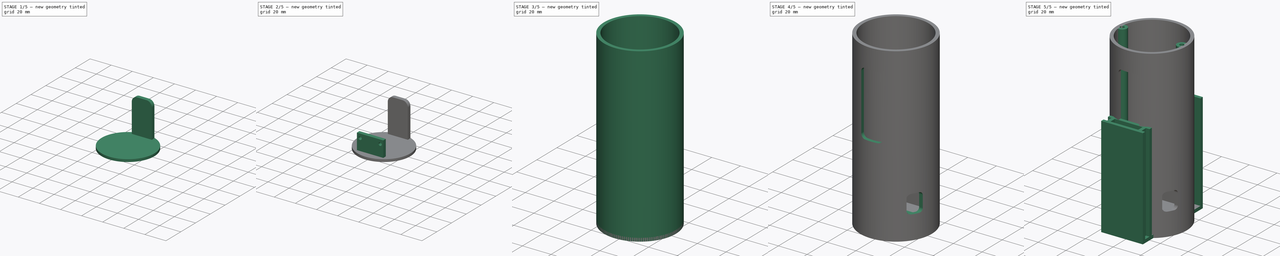
[diagram: build sequence overview — one tinted view per stage of 5, left to right]
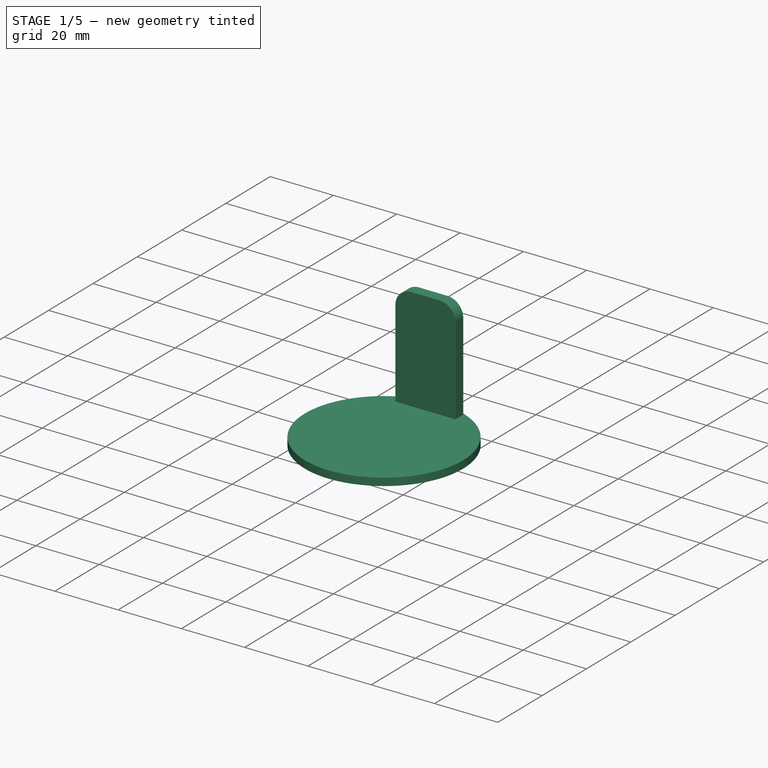
[diagram: stage 1 of 5 — iso view after this stage's code; geometry added in this stage tinted green]
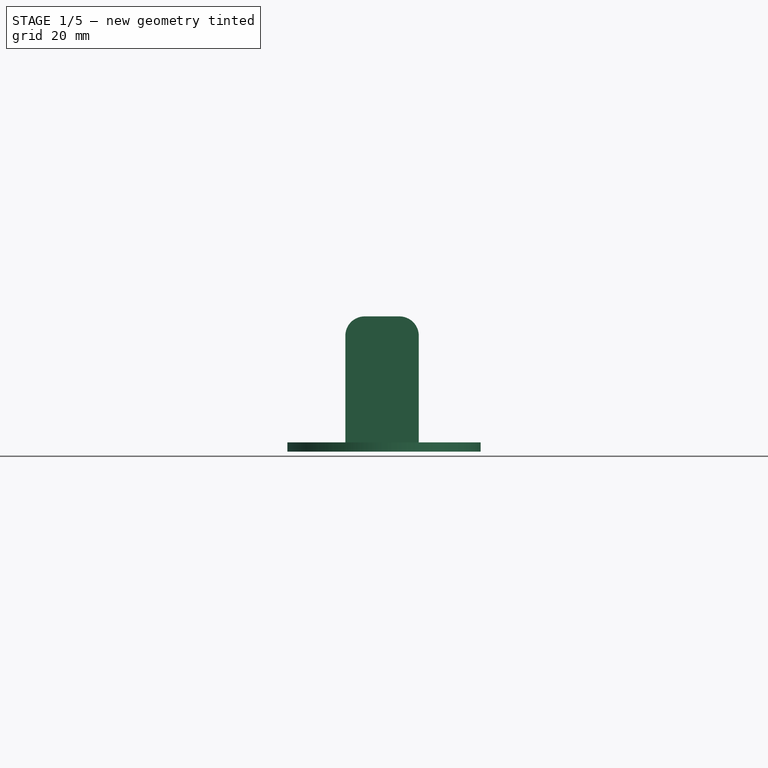
[diagram: stage 1 of 5 — front view after this stage's code; geometry added in this stage tinted green]
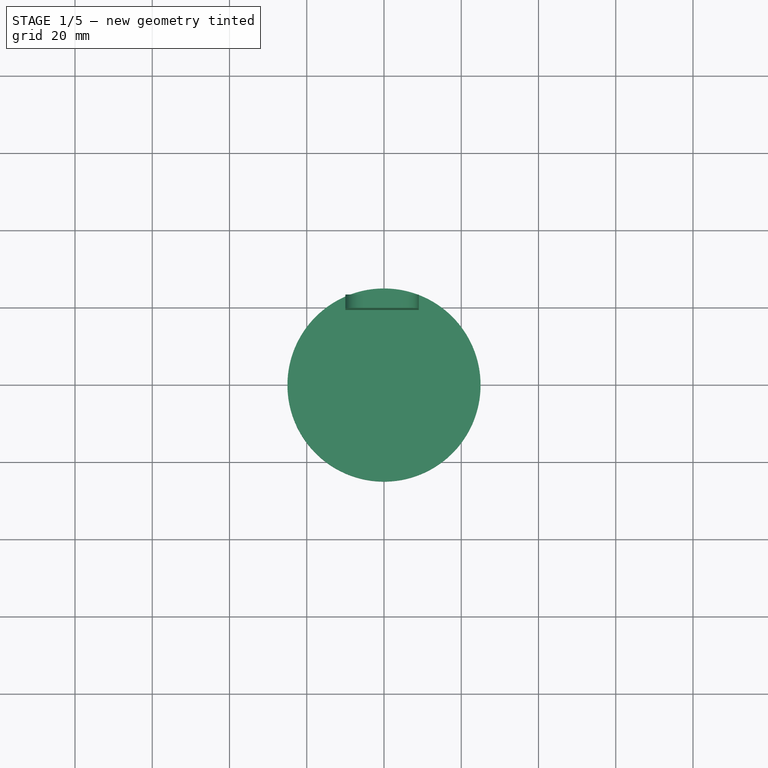
[diagram: stage 1 of 5 — top view after this stage's code; geometry added in this stage tinted green]
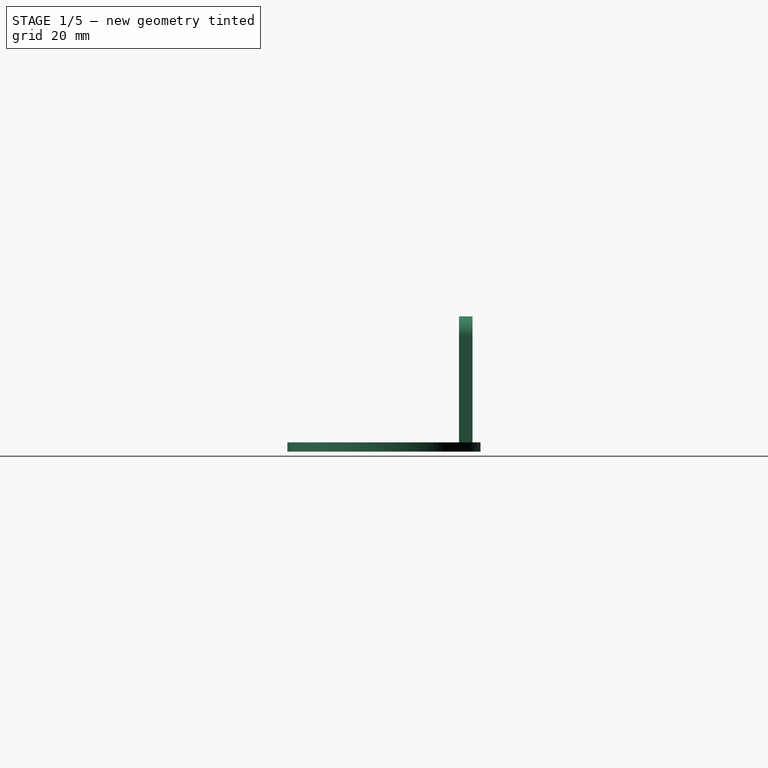
[diagram: stage 1 of 5 — right view after this stage's code; geometry added in this stage tinted green]
FCSTD DOCUMENT  (FreeCAD 0.20RUnknown)
Label: desk-light-v1
License: All rights reserved
LicenseURL: http://en.wikipedia.org/wiki/All_rights_reserved
objects: Sketcher::SketchObject×17, PartDesign::Pad×9, PartDesign::Pocket×8, PartDesign::Body×4, PartDesign::Fillet×2, Spreadsheet::Sheet×1
note: 59 computed .brp shape members not serialized (recipe doc carries the construction recipe); baked Part::Feature solids carry a one-line shape summary decoded from their .brp

FEATURE [PartDesign::Body] Body003  label="main_cylinder"
  Group = -> [Sketch014,Pad008,Sketch015,Pocket006,Sketch016,Pocket007,Sketch017,Sketch018,Pad009,Pocket008,Sketch019,Pocket009,Sketch020,Pad010,Sketch021,Pocket010]
  Origin = -> Origin003
  Tip = -> Pocket010
FEATURE [Sketcher::SketchObject] Sketch022
  FullyConstrained = true
  MapMode = 5
  Support = -> [XY_Plane004]
  expr: Constraints[1] = <<params>>.body_dia
  expr: Constraints[3] = <<params>>.button_dia
  sketch-geometry (2):
    g0: Circle CenterX=0 CenterY=0 CenterZ=0 NormalX=0 NormalY=0 NormalZ=1 AngleXU=0 Radius=25
    g1: Circle CenterX=0 CenterY=0 CenterZ=0 NormalX=0 NormalY=0 NormalZ=1 AngleXU=0 Radius=10
  constraints (4):
    c: Coincident(g0,g-1)
    c: Diameter(g0) = 50
    c: Coincident(g1,g0)
    c: Diameter(g1) = 20
FEATURE [PartDesign::Pad] Pad011  label="main_disk"
  Direction = (0,0,1)
  Length = 2.4
  Length2 = 10
  Profile = -> Sketch022
  ReferenceAxis = -> Sketch022 [N_Axis]
  Type = 0
  expr: Length = <<params>>.attachement_wall_width
FEATURE [PartDesign::Body] Body004  label="button_lid"
  Group = -> [Sketch022,Pad011,Sketch023,Pocket011,Sketch024,Pocket012,Sketch025,Pad012,Sketch026,Pocket013,Fillet]
  Origin = -> Origin004
  Tip = -> Fillet
FEATURE [Sketcher::SketchObject] Sketch027
  FullyConstrained = true
  MapMode = 5
  Support = -> [XY_Plane005]
  expr: Constraints[19] = <<params>>.m2_drill_dia
  expr: Constraints[1] = <<params>>.body_dia
  expr: Constraints[3] = <<params>>.body_dia * 0.7
  sketch-geometry (10):
    g0: Circle CenterX=0 CenterY=0 CenterZ=0 NormalX=0 NormalY=0 NormalZ=1 AngleXU=0 Radius=25
    g1: Circle CenterX=-12.3744 CenterY=12.3744 CenterZ=0 NormalX=0 NormalY=0 NormalZ=1 AngleXU=0 Radius=1.5
    g2: Circle CenterX=12.3744 CenterY=12.3744 CenterZ=0 NormalX=0 NormalY=0 NormalZ=1 AngleXU=0 Radius=1.5
    g3: Circle CenterX=-12.3744 CenterY=-12.3744 CenterZ=0 NormalX=0 NormalY=0 NormalZ=1 AngleXU=0 Radius=1.5
    g4: Circle CenterX=12.3744 CenterY=-12.3744 CenterZ=0 NormalX=0 NormalY=0 NormalZ=1 AngleXU=0 Radius=1.5
    g5: Circle CenterX=0 CenterY=0 CenterZ=0 NormalX=0 NormalY=0 NormalZ=1 AngleXU=0 Radius=17.5
    g6: LineSegment StartX=-12.3744 StartY=12.3744 StartZ=0 EndX=0 EndY=0 EndZ=0
    g7: LineSegment StartX=12.3744 StartY=12.3744 StartZ=0 EndX=0 EndY=0 EndZ=0
    g8: LineSegment StartX=0 StartY=0 StartZ=0 EndX=12.3744 EndY=-12.3744 EndZ=0
    g9: LineSegment StartX=-12.3744 StartY=-12.3744 StartZ=0 EndX=0 EndY=0 EndZ=0
  constraints (24):
    c: Coincident(g0,g-1)
    c: Diameter(g0) = 50
    c: Coincident(g5,g0)
    c: Diameter(g5) = 35
    c: Equal(g1,g2)
    c: Equal(g3,g1)
    c: Equal(g1,g4)
    c: Coincident(g6,g1)
    c: Coincident(g6,g0)
    c: Coincident(g7,g2)
    c: Coincident(g7,g0)
    c: Coincident(g8,g0)
    c: Coincident(g8,g4)
    c: Coincident(g9,g3)
    c: Coincident(g9,g0)
    c: PointOnObject(g1,g5)
    c: PointOnObject(g2,g5)
    c: PointOnObject(g3,g5)
    c: PointOnObject(g4,g5)
    c: Diameter(g1) = 3
    c: Angle(g-1,g7) = 0.785398
    c: Angle(g7,g6) = 1.5708
    c: Angle(g6,g9) = 1.5708
    c: Angle(g9,g8) = 1.5708
FEATURE [PartDesign::Pad] Pad013  label="main_plate"
  Direction = (0,0,1)
  Length = 2.4
  Length2 = 10
  Profile = -> Sketch027
  ReferenceAxis = -> Sketch027 [N_Axis]
  Type = 0
  expr: Length = <<params>>.attachement_wall_width
FEATURE [Sketcher::SketchObject] Sketch028
  FullyConstrained = true
  MapMode = 5
  Support = -> [XY_Plane005]
  expr: Constraints[11] = <<params>>.body_dia
  expr: Constraints[12] = <<params>>.attachement_window_width / 2
  expr: Constraints[8] = <<params>>.attachement_window_width - 1
  expr: Constraints[9] = <<params>>.attachement_window_height - 1
  sketch-geometry (5):
    g0: LineSegment StartX=-10 StartY=22.9129 StartZ=0 EndX=9 EndY=22.9129 EndZ=0
    g1: LineSegment StartX=9 StartY=22.9129 StartZ=0 EndX=9 EndY=19.4129 EndZ=0
    g2: LineSegment StartX=9 StartY=19.4129 StartZ=0 EndX=-10 EndY=19.4129 EndZ=0
    g3: LineSegment StartX=-10 StartY=19.4129 StartZ=0 EndX=-10 EndY=22.9129 EndZ=0
    g4: Circle CenterX=0 CenterY=0 CenterZ=0 NormalX=0 NormalY=0 NormalZ=1 AngleXU=0 Radius=25
  constraints (14):
    c: Coincident(g0,g1)
    c: Coincident(g1,g2)
    c: Coincident(g2,g3)
    c: Coincident(g3,g0)
    c: Horizontal(g0)
    c: Horizontal(g2)
    c: Vertical(g1)
    c: Vertical(g3)
    c: Distance(g0) = 19
    c: Distance(g1) = 3.5
    c: Coincident(g4,g-1)
    c: Diameter(g4) = 50
    c: DistanceX(g0,g4) = 10
    c: PointOnObject(g0,g4)
FEATURE [PartDesign::Pad] Pad014  label="support_slider"
  BaseFeature = -> Pad013
  Direction = (0,0,1)
  Length = 35
  Length2 = 10
  Profile = -> Sketch028
  ReferenceAxis = -> Sketch028 [N_Axis]
  Type = 0
  expr: Length = <<params>>.attachement_support_length / 2
FEATURE [PartDesign::Fillet] Fillet001
  Base = -> Pad014 [Edge28,Edge32]
  BaseFeature = -> Pad014
  Radius = 5
  SupportTransform = false
  UseAllEdges = false
FEATURE [PartDesign::Body] Body005  label="back_attachement"
  Group = -> [Sketch027,Pad013,Sketch028,Pad014,Fillet001]
  Origin = -> Origin005
  Tip = -> Fillet001
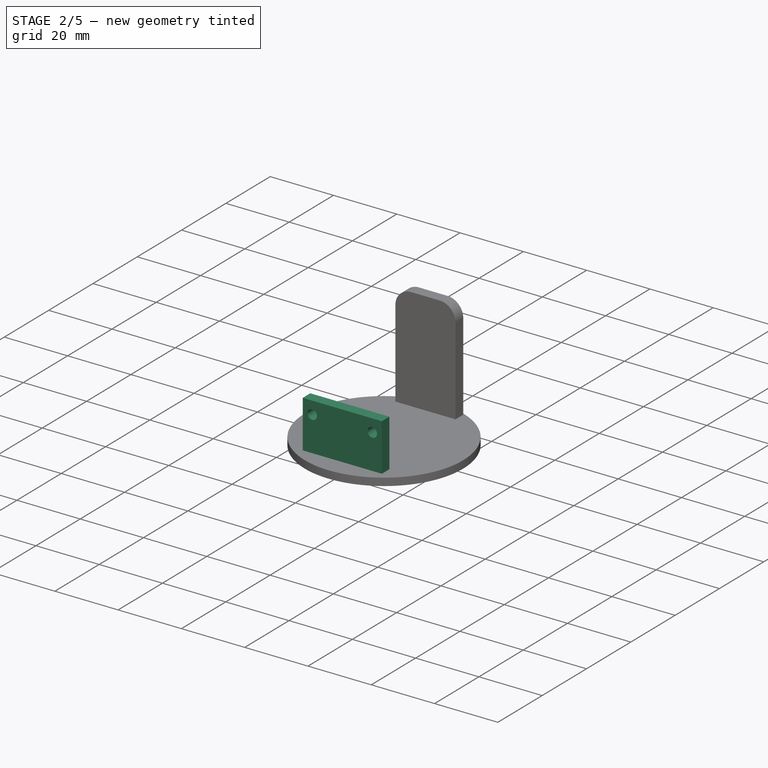
[diagram: stage 2 of 5 — iso view after this stage's code; geometry added in this stage tinted green]
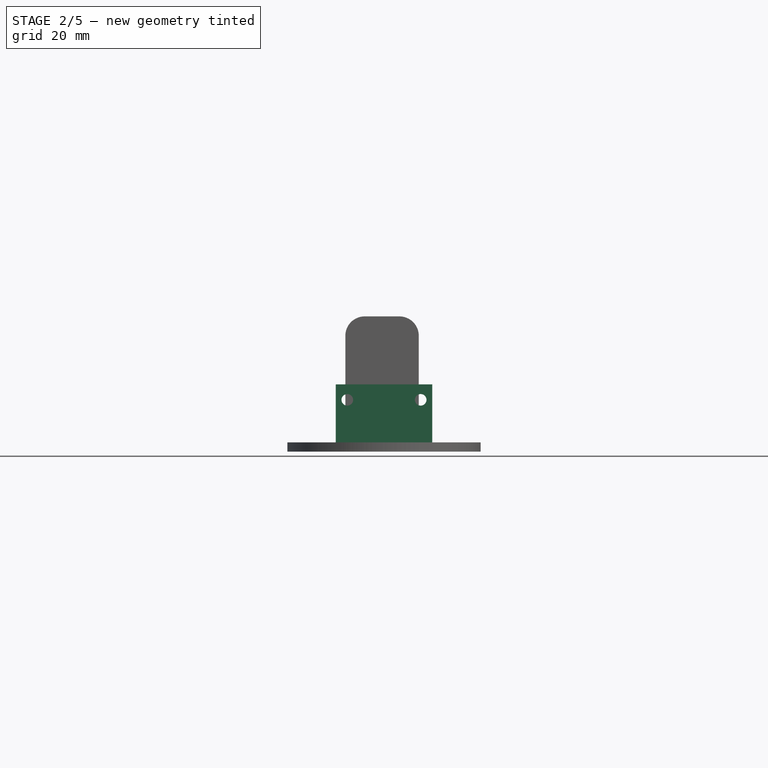
[diagram: stage 2 of 5 — front view after this stage's code; geometry added in this stage tinted green]
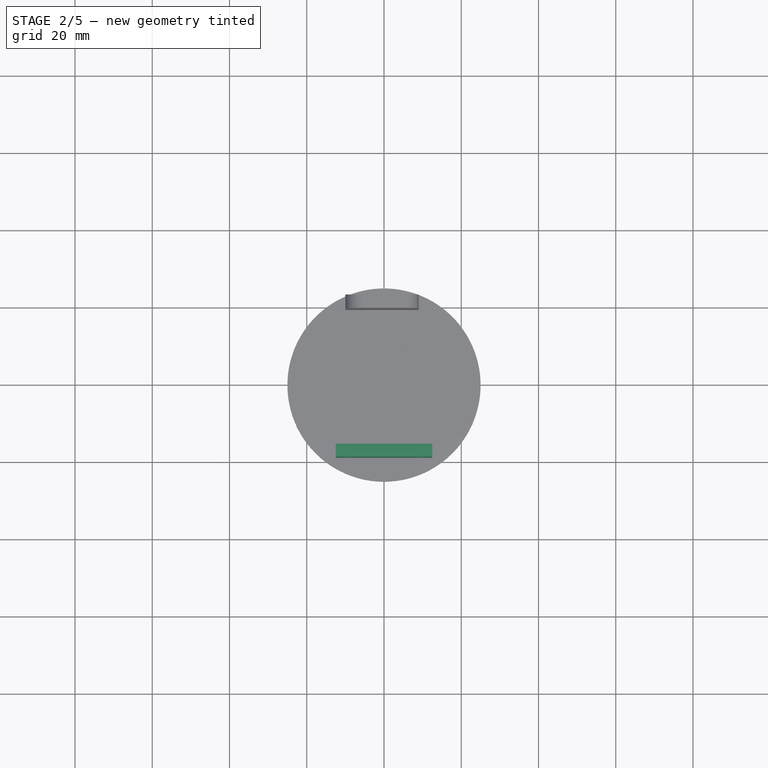
[diagram: stage 2 of 5 — top view after this stage's code; geometry added in this stage tinted green]
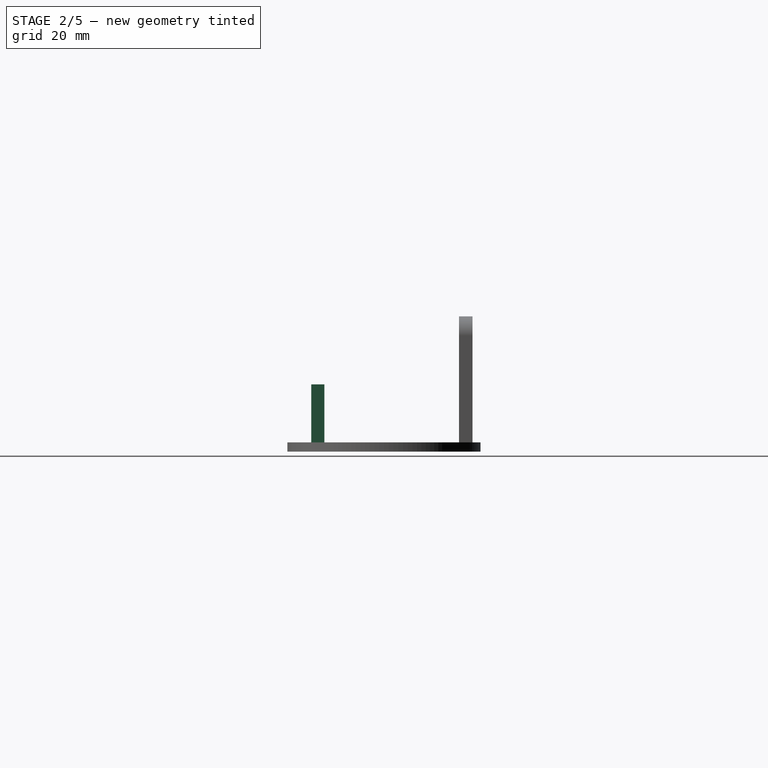
[diagram: stage 2 of 5 — right view after this stage's code; geometry added in this stage tinted green]
FEATURE [Sketcher::SketchObject] Sketch023
  FullyConstrained = true
  MapMode = 5
  Support = -> [XY_Plane004]
  expr: Constraints[10] = <<params>>.button_guide_width / 2
  expr: Constraints[12] = <<params>>.button_dia
  expr: Constraints[22] = <<params>>.button_clip_width
  expr: Constraints[23] = <<params>>.button_clip_length
  expr: Constraints[24] = <<params>>.button_clip_width / 2
  expr: Constraints[8] = <<params>>.button_guide_width
  expr: Constraints[9] = <<params>>.button_guite_length
  sketch-geometry (13):
    g0: LineSegment StartX=-1.4 StartY=11.9015 StartZ=0 EndX=1.4 EndY=11.9015 EndZ=0
    g1: LineSegment StartX=1.4 StartY=11.9015 StartZ=0 EndX=1.4 EndY=9.90152 EndZ=0
    g2: LineSegment StartX=1.4 StartY=9.90152 StartZ=0 EndX=-1.4 EndY=9.90152 EndZ=0
    g3: LineSegment StartX=-1.4 StartY=9.90152 StartZ=0 EndX=-1.4 EndY=11.9015 EndZ=0
    g4: Circle CenterX=0 CenterY=0 CenterZ=0 NormalX=0 NormalY=0 NormalZ=1 AngleXU=0 Radius=10
    g5: LineSegment StartX=9.74359 StartY=2.25 StartZ=0 EndX=10.7436 EndY=2.25 EndZ=0
    g6: LineSegment StartX=10.7436 StartY=2.25 StartZ=0 EndX=10.7436 EndY=-2.25 EndZ=0
    g7: LineSegment StartX=10.7436 StartY=-2.25 StartZ=0 EndX=9.74359 EndY=-2.25 EndZ=0
    g8: LineSegment StartX=9.74359 StartY=-2.25 StartZ=0 EndX=9.74359 EndY=2.25 EndZ=0
    g9: LineSegment StartX=-10.7436 StartY=2.25 StartZ=0 EndX=-9.74359 EndY=2.25 EndZ=0
    g10: LineSegment StartX=-9.74359 StartY=2.25 StartZ=0 EndX=-9.74359 EndY=-2.25 EndZ=0
    g11: LineSegment StartX=-9.74359 StartY=-2.25 StartZ=0 EndX=-10.7436 EndY=-2.25 EndZ=0
    g12: LineSegment StartX=-10.7436 StartY=-2.25 StartZ=0 EndX=-10.7436 EndY=2.25 EndZ=0
  constraints (37):
    c: Coincident(g0,g1)
    c: Coincident(g1,g2)
    c: Coincident(g2,g3)
    c: Coincident(g3,g0)
    c: Horizontal(g0)
    c: Horizontal(g2)
    c: Vertical(g1)
    c: Vertical(g3)
    c: Distance(g0) = 2.8
    c: Distance(g1) = 2
    c: DistanceX(g-1,g1) = 1.4
    c: Coincident(g4,g-1)
    c: Diameter(g4) = 20
    c: PointOnObject(g1,g4)
    c: Coincident(g5,g6)
    c: Coincident(g6,g7)
    c: Coincident(g7,g8)
    c: Coincident(g8,g5)
    c: Horizontal(g5)
    c: Horizontal(g7)
    c: Vertical(g6)
    c: Vertical(g8)
    c: Distance(g6) = 4.5
    c: Distance(g5) = 1
    c: DistanceY(g4,g5) = 2.25
    c: PointOnObject(g5,g4)
    c: Coincident(g9,g10)
    c: Coincident(g10,g11)
    c: Coincident(g11,g12)
    c: Coincident(g12,g9)
    c: Horizontal(g9)
    c: Horizontal(g11)
    c: Vertical(g10)
    c: Vertical(g12)
    c: Equal(g10,g6)
    c: Equal(g9,g5)
    c: Symmetric(g9,g5,g-2)
FEATURE [PartDesign::Pocket] Pocket011  label="button_guide"
  BaseFeature = -> Pad011
  Direction = (0,0,-1)
  Length = 5
  Length2 = 5
  Profile = -> Sketch023
  ReferenceAxis = -> Sketch023 [N_Axis]
  Reversed = true
  Type = 1
FEATURE [Sketcher::SketchObject] Sketch024
  FullyConstrained = true
  MapMode = 5
  Support = -> [XY_Plane004]
  expr: Constraints[1] = <<params>>.body_dia
  expr: Constraints[3] = <<params>>.body_dia / 2 - <<params>>.m2_support_dia / 2
  expr: Constraints[4] = <<params>>.m2_drill_dia
  sketch-geometry (3):
    g0: Circle CenterX=0 CenterY=0 CenterZ=0 NormalX=0 NormalY=0 NormalZ=1 AngleXU=0 Radius=25
    g1: Circle CenterX=-21.5 CenterY=0 CenterZ=0 NormalX=0 NormalY=0 NormalZ=1 AngleXU=0 Radius=1.5
    g2: Circle CenterX=21.5 CenterY=-9e-16 CenterZ=0 NormalX=0 NormalY=0 NormalZ=1 AngleXU=0 Radius=1.5
  constraints (7):
    c: Coincident(g0,g-1)
    c: Diameter(g0) = 50
    c: PointOnObject(g1,g-1)
    c: DistanceX(g1,g0) = 21.5
    c: Diameter(g1) = 3
    c: Equal(g1,g2)
    c: Symmetric(g2,g1,g-2)
FEATURE [PartDesign::Pocket] Pocket012  label="screw_holes"
  BaseFeature = -> Pocket011
  Direction = (0,0,-1)
  Length = 5
  Length2 = 5
  Profile = -> Sketch024
  ReferenceAxis = -> Sketch024 [N_Axis]
  Reversed = true
  Type = 1
FEATURE [Sketcher::SketchObject] Sketch025
  FullyConstrained = true
  MapMode = 5
  Support = -> [XY_Plane004]
  expr: Constraints[13] = <<params>>.attachement_wall_width + 1
  expr: Constraints[1] = <<params>>.body_dia - 2 * <<params>>.attachement_wall_width
  expr: Constraints[3] = <<params>>.pcb_width
  sketch-geometry (6):
    g0: Circle CenterX=0 CenterY=0 CenterZ=0 NormalX=0 NormalY=0 NormalZ=1 AngleXU=0 Radius=22.6
    g1: LineSegment StartX=-12.5 StartY=-18.8284 StartZ=0 EndX=12.5 EndY=-18.8284 EndZ=0
    g2: LineSegment StartX=-12.5 StartY=-15.4284 StartZ=0 EndX=12.5 EndY=-15.4284 EndZ=0
    g3: LineSegment StartX=12.5 StartY=-15.4284 StartZ=0 EndX=12.5 EndY=-18.8284 EndZ=0
    g4: LineSegment StartX=12.5 StartY=-18.8284 StartZ=0 EndX=-12.5 EndY=-18.8284 EndZ=0
    g5: LineSegment StartX=-12.5 StartY=-18.8284 StartZ=0 EndX=-12.5 EndY=-15.4284 EndZ=0
  constraints (16):
    c: Coincident(g0,g-1)
    c: Diameter(g0) = 45.2
    c: Horizontal(g1)
    c: Distance(g1) = 25
    c: PointOnObject(g1,g0)
    c: PointOnObject(g1,g0)
    c: Coincident(g2,g3)
    c: Coincident(g3,g4)
    c: Coincident(g4,g5)
    c: Coincident(g5,g2)
    c: Horizontal(g2)
    c: Vertical(g3)
    c: Vertical(g5)
    c: DistanceY(g3,g3) = 3.4
    c: Coincident(g3,g1)
    c: Coincident(g4,g1)
FEATURE [PartDesign::Pad] Pad012  label="pcb_holder"
  BaseFeature = -> Pocket012
  Direction = (0,0,1)
  Length = 17.4
  Length2 = 10
  Profile = -> Sketch025
  ReferenceAxis = -> Sketch025 [N_Axis]
  Type = 0
  expr: Length = <<params>>.attachement_wall_width + <<params>>.pcb_offset_from_edge + <<params>>.m2_support_dia
FEATURE [Sketcher::SketchObject] Sketch026
  FullyConstrained = true
  MapMode = 5
  Placement = pos=(0,-18.8284,0) rot=(1,0,0;1.5708rad)
  Support = -> [Pad012]
  expr: Constraints[0] = <<params>>.attachement_wall_width + <<params>>.pcb_offset_from_edge + <<params>>.pcb_drill_offset
  expr: Constraints[1] = <<params>>.m2_drill_dia
  expr: Constraints[2] = <<params>>.pcb_width / 2 - <<params>>.pcb_drill_offset
  sketch-geometry (2):
    g0: Circle CenterX=-9.5 CenterY=13.4 CenterZ=0 NormalX=0 NormalY=0 NormalZ=1 AngleXU=0 Radius=1.5
    g1: Circle CenterX=9.5 CenterY=13.4 CenterZ=0 NormalX=0 NormalY=0 NormalZ=1 AngleXU=0 Radius=1.5
  constraints (5):
    c: DistanceY(g-1,g0) = 13.4
    c: Diameter(g0) = 3
    c: DistanceX(g0,g-1) = 9.5
    c: Equal(g0,g1)
    c: Symmetric(g1,g0,g-2)
FEATURE [PartDesign::Pocket] Pocket013  label="pcb_holder_drill"
  BaseFeature = -> Pad012
  Direction = (0,1,-2e-16)
  Length = 5
  Length2 = 5
  Profile = -> Sketch026
  ReferenceAxis = -> Sketch026 [N_Axis]
  Type = 1
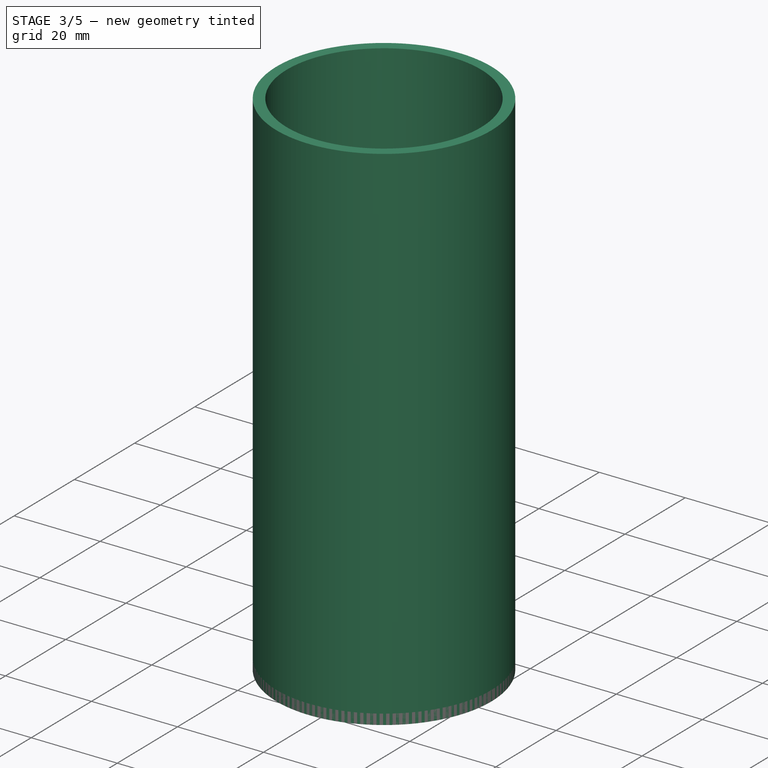
[diagram: stage 3 of 5 — iso view after this stage's code; geometry added in this stage tinted green]
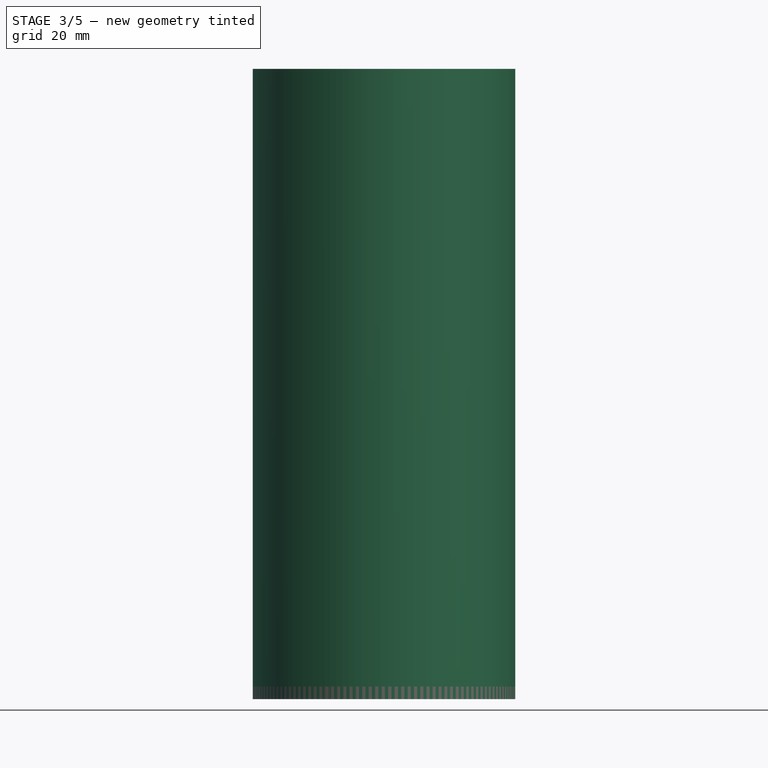
[diagram: stage 3 of 5 — front view after this stage's code; geometry added in this stage tinted green]
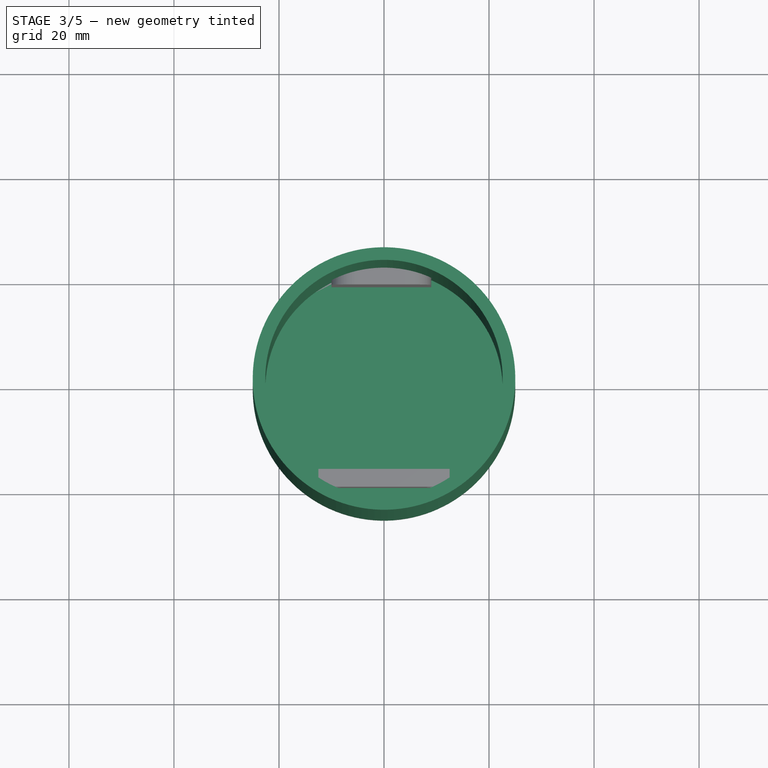
[diagram: stage 3 of 5 — top view after this stage's code; geometry added in this stage tinted green]
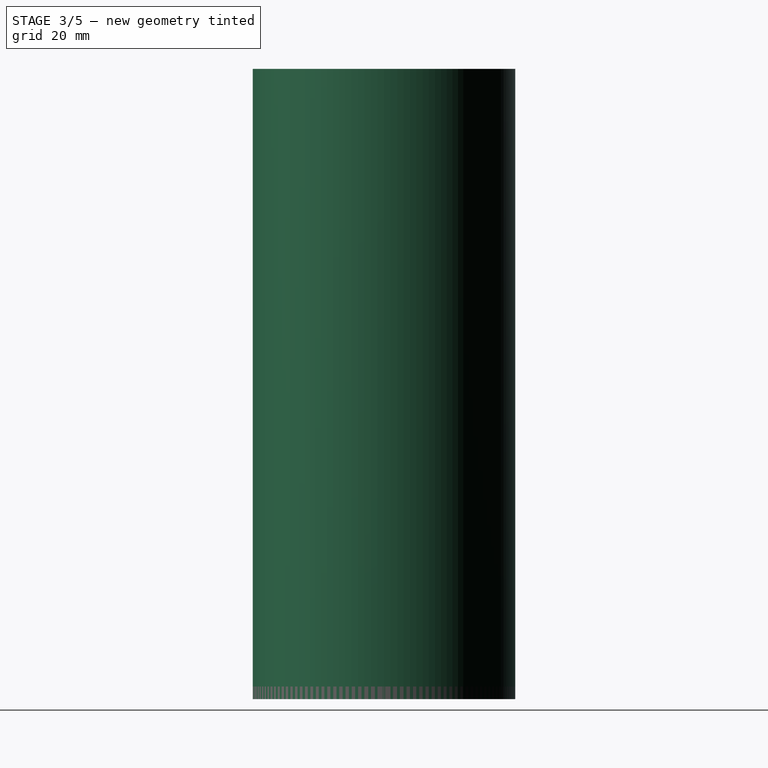
[diagram: stage 3 of 5 — right view after this stage's code; geometry added in this stage tinted green]
FEATURE [PartDesign::Body] Body  label="attachement"
  Group = -> [Sketch,Pad,Sketch001,Pad001]
  Origin = -> Origin
  Tip = -> Pad001
FEATURE [Sketcher::SketchObject] Sketch014
  FullyConstrained = true
  MapMode = 5
  Support = -> [XY_Plane003]
  expr: Constraints[1] = <<params>>.body_dia
  sketch-geometry (1):
    g0: Circle CenterX=0 CenterY=0 CenterZ=0 NormalX=0 NormalY=0 NormalZ=1 AngleXU=0 Radius=25
  constraints (2):
    c: Coincident(g0,g-1)
    c: Diameter(g0) = 50
FEATURE [PartDesign::Pad] Pad008  label="cylinder"
  Direction = (0,0,1)
  Length = 120
  Length2 = 10
  Profile = -> Sketch014
  ReferenceAxis = -> Sketch014 [N_Axis]
  Type = 0
  expr: Length = <<params>>.main_plate_length
FEATURE [Sketcher::SketchObject] Sketch015
  AttachmentOffset = pos=(0,0,4) rot=(0,0,1;0rad)
  FullyConstrained = true
  MapMode = 5
  Placement = pos=(0,0,4) rot=(0,0,1;0rad)
  Support = -> [XY_Plane003]
  expr: .AttachmentOffset.Base.z = <<params>>.m2_depth
  expr: Constraints[1] = <<params>>.body_dia - 2 * <<params>>.attachement_wall_width
  sketch-geometry (1):
    g0: Circle CenterX=0 CenterY=0 CenterZ=0 NormalX=0 NormalY=0 NormalZ=1 AngleXU=0 Radius=22.6
  constraints (2):
    c: Coincident(g0,g-1)
    c: Diameter(g0) = 45.2
FEATURE [PartDesign::Pocket] Pocket006  label="cylinder_cutout"
  BaseFeature = -> Pad008
  Direction = (0,0,-1)
  Length = 5
  Length2 = 5
  Profile = -> Sketch015
  ReferenceAxis = -> Sketch015 [N_Axis]
  Reversed = true
  Type = 1
FEATURE [PartDesign::Fillet] Fillet
  Base = -> Pocket013 [Edge60,Edge61]
  BaseFeature = -> Pocket013
  Radius = 1
  SupportTransform = false
  UseAllEdges = false
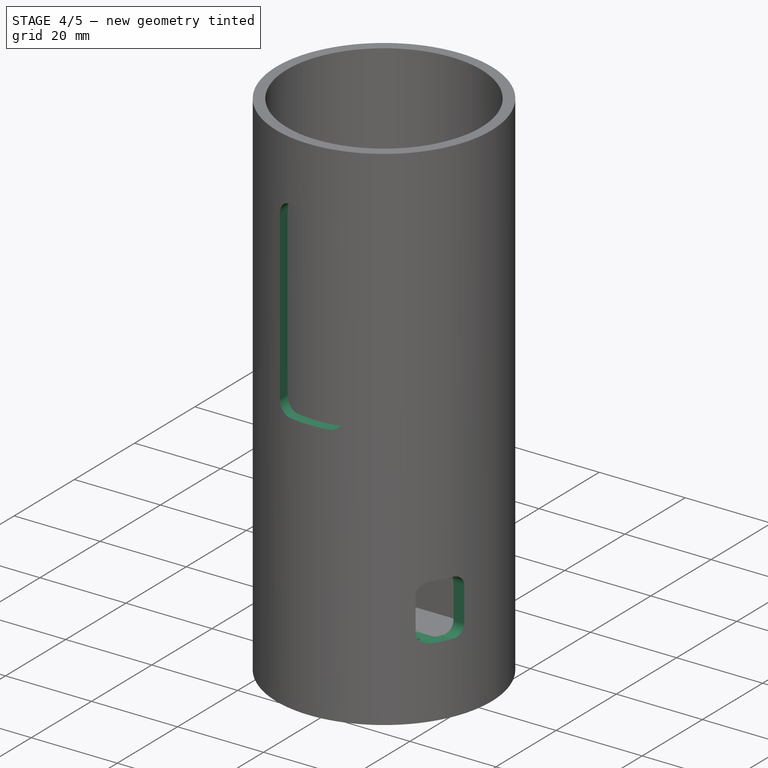
[diagram: stage 4 of 5 — iso view after this stage's code; geometry added in this stage tinted green]
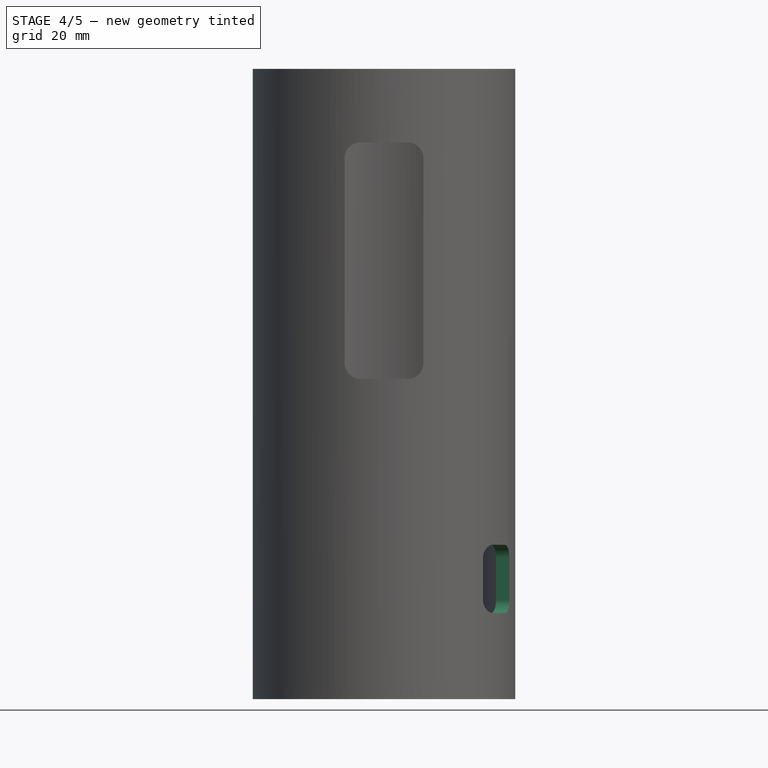
[diagram: stage 4 of 5 — front view after this stage's code; geometry added in this stage tinted green]
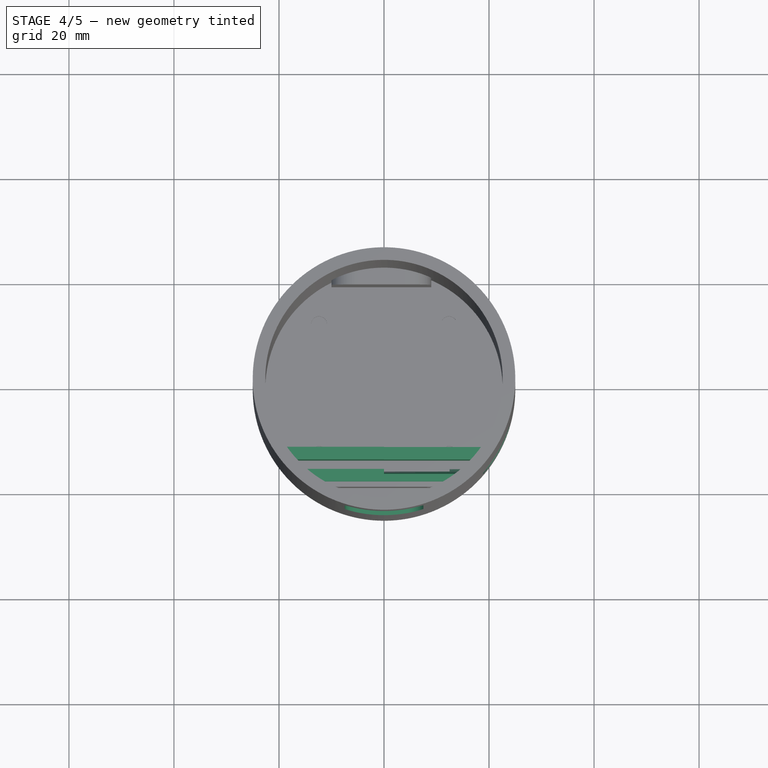
[diagram: stage 4 of 5 — top view after this stage's code; geometry added in this stage tinted green]
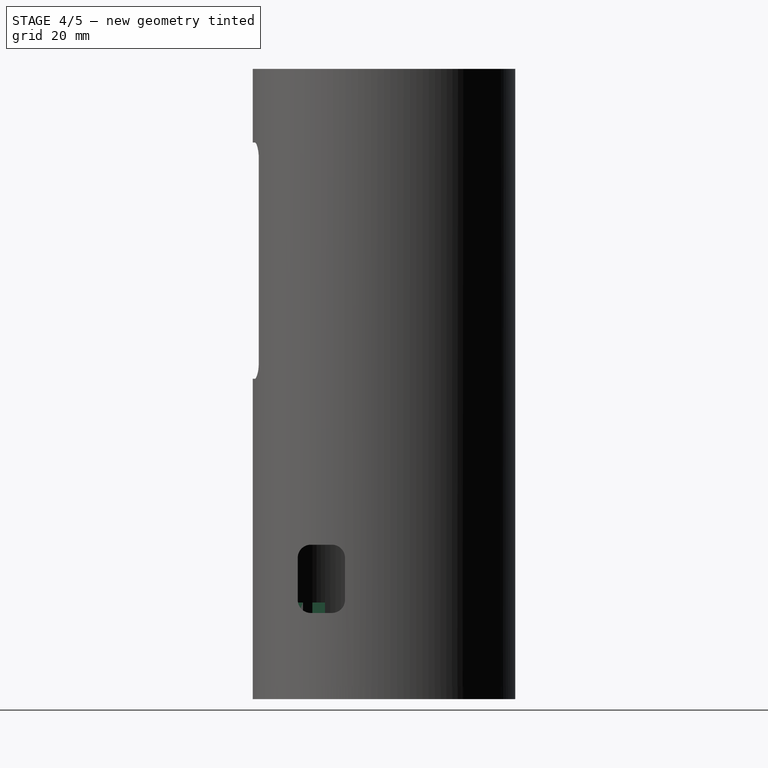
[diagram: stage 4 of 5 — right view after this stage's code; geometry added in this stage tinted green]
FEATURE [Sketcher::SketchObject] Sketch016
  AttachmentOffset = pos=(0,0,25) rot=(0,0,1;0rad)
  FullyConstrained = true
  MapMode = 5
  Placement = pos=(0,-25,5.6e-15) rot=(1,0,0;1.5708rad)
  Support = -> [XZ_Plane003]
  expr: .AttachmentOffset.Base.z = <<params>>.body_dia / 2
  expr: Constraints[20] = <<params>>.light_slit_length
  expr: Constraints[21] = <<params>>.light_slit_width
  expr: Constraints[22] = <<params>>.light_slit_width / 2
  expr: Constraints[31] = <<params>>.pcb_length
  expr: Constraints[32] = <<params>>.pcb_width
  expr: Constraints[33] = <<params>>.pcb_width / 2
  expr: Constraints[34] = <<params>>.main_plate_length - <<params>>.pcb_length - <<params>>.pcb_offset_from_edge
  expr: Constraints[35] = <<params>>.light_slit_pcb_offset
  sketch-geometry (14):
    g0: ArcOfCircle CenterX=-4.5 CenterY=103 CenterZ=0 NormalX=0 NormalY=0 NormalZ=1 AngleXU=0 Radius=3 StartAngle=1.5708 EndAngle=3.14159
    g1: LineSegment StartX=-4.5 StartY=106 StartZ=0 EndX=4.5 EndY=106 EndZ=0
    g2: ArcOfCircle CenterX=4.5 CenterY=103 CenterZ=0 NormalX=0 NormalY=0 NormalZ=1 AngleXU=0 Radius=3 StartAngle=-2.7e-15 EndAngle=1.5708
    g3: LineSegment StartX=7.5 StartY=103 StartZ=0 EndX=7.5 EndY=64 EndZ=0
    g4: ArcOfCircle CenterX=4.5 CenterY=64 CenterZ=0 NormalX=0 NormalY=0 NormalZ=1 AngleXU=0 Radius=3 StartAngle=4.71239 EndAngle=6.28319
    g5: LineSegment StartX=4.5 StartY=61 StartZ=0 EndX=-4.5 EndY=61 EndZ=0
    g6: ArcOfCircle CenterX=-4.5 CenterY=64 CenterZ=0 NormalX=0 NormalY=0 NormalZ=1 AngleXU=0 Radius=3 StartAngle=3.14159 EndAngle=4.71239
    g7: LineSegment StartX=-7.5 StartY=64 StartZ=0 EndX=-7.5 EndY=103 EndZ=0
    g8: GeomPoint X=-7.5 Y=106 Z=0
    g9: GeomPoint X=7.5 Y=61 Z=0
    g10: LineSegment StartX=-12.5 StartY=112 StartZ=0 EndX=12.5 EndY=112 EndZ=0
    g11: LineSegment StartX=12.5 StartY=112 StartZ=0 EndX=12.5 EndY=12 EndZ=0
    g12: LineSegment StartX=12.5 StartY=12 StartZ=0 EndX=-12.5 EndY=12 EndZ=0
    g13: LineSegment StartX=-12.5 StartY=12 StartZ=0 EndX=-12.5 EndY=112 EndZ=0
  constraints (36):
    c: Tangent(g0,g1) = 1.5708
    c: Tangent(g1,g2) = 1.5708
    c: Tangent(g2,g3) = 1.5708
    c: Tangent(g3,g4) = 1.5708
    c: Tangent(g4,g5) = 1.5708
    c: Tangent(g5,g6) = 1.5708
    c: Tangent(g6,g7) = 1.5708
    c: Tangent(g7,g0) = 1.5708
    c: Horizontal(g1)
    c: Horizontal(g5)
    c: Vertical(g3)
    c: Vertical(g7)
    c: Equal(g0,g2)
    c: Equal(g2,g4)
    c: Equal(g4,g6)
    c: PointOnObject(g8,g1)
    c: PointOnObject(g8,g7)
    c: PointOnObject(g9,g3)
    c: PointOnObject(g9,g5)
    c: DistanceX(g2,g2) = 3
    c: DistanceY(g4,g1) = 45
    c: DistanceX(g0,g2) = 15
    c: DistanceX(g-1,g2) = 7.5
    c: Coincident(g10,g11)
    c: Coincident(g11,g12)
    c: Coincident(g12,g13)
    c: Coincident(g13,g10)
    c: Horizontal(g10)
    c: Horizontal(g12)
    c: Vertical(g11)
    c: Vertical(g13)
    c: Distance(g11) = 100
    c: Distance(g10) = 25
    c: DistanceX(g-1,g11) = 12.5
    c: DistanceY(g-1,g11) = 12
    c: DistanceY(g1,g10) = 6
FEATURE [PartDesign::Pocket] Pocket007  label="light_slit001"
  BaseFeature = -> Pocket006
  Direction = (0,1,-2e-16)
  Length = 25
  Length2 = 5
  Profile = -> Sketch016
  ReferenceAxis = -> Sketch016 [N_Axis]
  Type = 0
  expr: Length = <<params>>.body_dia / 2
FEATURE [Sketcher::SketchObject] Sketch017
  FullyConstrained = true
  MapMode = 5
  Support = -> [XY_Plane003]
  expr: Constraints[1] = <<params>>.body_dia * 0.7
  expr: Constraints[21] = <<params>>.m2_drill_dia
  sketch-geometry (9):
    g0: Circle CenterX=0 CenterY=0 CenterZ=0 NormalX=0 NormalY=0 NormalZ=1 AngleXU=0 Radius=17.5
    g1: Circle CenterX=-12.3744 CenterY=12.3744 CenterZ=0 NormalX=0 NormalY=0 NormalZ=1 AngleXU=0 Radius=1.5
    g2: Circle CenterX=12.3744 CenterY=12.3744 CenterZ=0 NormalX=0 NormalY=0 NormalZ=1 AngleXU=0 Radius=1.5
    g3: Circle CenterX=12.3744 CenterY=-12.3744 CenterZ=0 NormalX=0 NormalY=0 NormalZ=1 AngleXU=0 Radius=1.5
    g4: Circle CenterX=-12.3744 CenterY=-12.3744 CenterZ=0 NormalX=0 NormalY=0 NormalZ=1 AngleXU=0 Radius=1.5
    g5: LineSegment StartX=0 StartY=0 StartZ=0 EndX=12.3744 EndY=12.3744 EndZ=0
    g6: LineSegment StartX=0 StartY=0 StartZ=0 EndX=-12.3744 EndY=12.3744 EndZ=0
    g7: LineSegment StartX=-12.3744 StartY=-12.3744 StartZ=0 EndX=0 EndY=0 EndZ=0
    g8: LineSegment StartX=0 StartY=0 StartZ=0 EndX=12.3744 EndY=-12.3744 EndZ=0
  constraints (22):
    c: Coincident(g0,g-1)
    c: Diameter(g0) = 35
    c: PointOnObject(g1,g0)
    c: PointOnObject(g3,g0)
    c: PointOnObject(g4,g0)
    c: PointOnObject(g2,g0)
    c: Coincident(g5,g0)
    c: Coincident(g5,g2)
    c: Coincident(g6,g0)
    c: Coincident(g6,g1)
    c: Coincident(g7,g4)
    c: Coincident(g7,g0)
    c: Coincident(g8,g0)
    c: Coincident(g8,g3)
    c: Angle(g-1,g5) = 0.785398
    c: Angle(g5,g6) = 1.5708
    c: Angle(g6,g7) = 1.5708
    c: Angle(g7,g8) = 1.5708
    c: Equal(g1,g2)
    c: Equal(g1,g4)
    c: Equal(g4,g3)
    c: Diameter(g1) = 3
FEATURE [Sketcher::SketchObject] Sketch018
  FullyConstrained = true
  MapMode = 5
  Support = -> [XY_Plane003]
  expr: Constraints[12] = 1
  expr: Constraints[1] = <<params>>.body_dia - 2 * <<params>>.attachement_wall_width
  expr: Constraints[21] = <<params>>.pcb_depth
  expr: Constraints[23] = <<params>>.button_dia
  expr: Constraints[25] = <<params>>.attachement_wall_width
  expr: Constraints[28] = <<params>>.attachement_wall_width
  expr: Constraints[3] = <<params>>.pcb_width
  expr: Constraints[6] = <<params>>.body_dia
  sketch-geometry (12):
    g0: Circle CenterX=0 CenterY=0 CenterZ=0 NormalX=0 NormalY=0 NormalZ=1 AngleXU=0 Radius=22.6
    g1: LineSegment StartX=-12.5 StartY=-18.8284 StartZ=0 EndX=12.5 EndY=-18.8284 EndZ=0
    g2: Circle CenterX=0 CenterY=0 CenterZ=0 NormalX=0 NormalY=0 NormalZ=1 AngleXU=0 Radius=25
    g3: LineSegment StartX=19.6714 StartY=-15.4284 StartZ=0 EndX=-19.6714 EndY=-15.4284 EndZ=0
    g4: LineSegment StartX=-17.5256 StartY=-17.8284 StartZ=0 EndX=17.5256 EndY=-17.8284 EndZ=0
    g5: LineSegment StartX=-17.5256 StartY=-17.8284 StartZ=0 EndX=-19.6714 EndY=-15.4284 EndZ=0
    g6: LineSegment StartX=-22.3366 StartY=-11.2284 StartZ=0 EndX=22.3366 EndY=-11.2284 EndZ=0
    g7: LineSegment StartX=-20.9587 StartY=-13.6284 StartZ=0 EndX=20.9587 EndY=-13.6284 EndZ=0
    g8: LineSegment StartX=-20.9587 StartY=-13.6284 StartZ=0 EndX=-22.3366 EndY=-11.2284 EndZ=0
    g9: Circle CenterX=0 CenterY=0 CenterZ=0 NormalX=0 NormalY=0 NormalZ=1 AngleXU=0 Radius=10
    g10: LineSegment StartX=22.3366 StartY=-11.2284 StartZ=0 EndX=20.9587 EndY=-13.6284 EndZ=0
    g11: LineSegment StartX=19.6714 StartY=-15.4284 StartZ=0 EndX=17.5256 EndY=-17.8284 EndZ=0
  constraints (34):
    c: Coincident(g0,g-1)
    c: Diameter(g0) = 45.2
    c: Horizontal(g1)
    c: Distance(g1) = 25
    c: PointOnObject(g1,g0)
    c: Coincident(g2,g0)
    c: Diameter(g2) = 50
    c: PointOnObject(g1,g0)
    c: Horizontal(g3)
    c: Horizontal(g4)
    c: Coincident(g5,g4)
    c: Coincident(g5,g3)
    c: DistanceY(g1,g4) = 1
    c: PointOnObject(g3,g2)
    c: PointOnObject(g4,g2)
    c: Horizontal(g6)
    c: Horizontal(g7)
    c: Coincident(g8,g7)
    c: Coincident(g8,g6)
    c: PointOnObject(g6,g2)
    c: PointOnObject(g7,g2)
    c: DistanceY(g3,g7) = 1.8
    c: Coincident(g9,g0)
    c: Diameter(g9) = 20
    c: PointOnObject(g4,g2)
    c: DistanceY(g4,g3) = 2.4
    c: PointOnObject(g3,g2)
    c: PointOnObject(g7,g2)
    c: DistanceY(g7,g6) = 2.4
    c: PointOnObject(g6,g2)
    c: Coincident(g10,g6)
    c: Coincident(g10,g7)
    c: Coincident(g11,g3)
    c: Coincident(g11,g4)
FEATURE [PartDesign::Pad] Pad009  label="pcb_sliding_support"
  BaseFeature = -> Pocket007
  Direction = (0,0,1)
  Length = 18.4
  Length2 = 10
  Profile = -> Sketch018
  ReferenceAxis = -> Sketch018 [N_Axis]
  Type = 0
  expr: Length = <<params>>.main_plate_length - <<params>>.pcb_length - <<params>>.pcb_offset_from_edge + <<params>>.usb_pcb_offset
FEATURE [PartDesign::Pocket] Pocket008  label="back_mount"
  BaseFeature = -> Pad009
  Direction = (0,0,-1)
  Length = 4
  Length2 = 5
  Profile = -> Sketch017
  ReferenceAxis = -> Sketch017 [N_Axis]
  Reversed = true
  Type = 0
  expr: Length = <<params>>.m2_depth
FEATURE [Sketcher::SketchObject] Sketch019
  AttachmentOffset = pos=(0,0,25) rot=(0,0,1;0rad)
  ExternalGeometry = -> [Pad009]
  FullyConstrained = true
  MapMode = 5
  Placement = pos=(25,-5.6e-15,5.6e-15) rot=(0.57735,0.57735,0.57735;2.0944rad)
  Support = -> [YZ_Plane003]
  expr: .AttachmentOffset.Base.z = <<params>>.body_dia / 2
  expr: Constraints[19] = 2.5
  expr: Constraints[20] = <<params>>.usb_hole_width
  expr: Constraints[21] = <<params>>.usb_hole_height
  sketch-geometry (10):
    g0: ArcOfCircle CenterX=-13.9284 CenterY=26.9 CenterZ=0 NormalX=0 NormalY=0 NormalZ=1 AngleXU=0 Radius=2.5 StartAngle=1.5708 EndAngle=3.14159
    g1: LineSegment StartX=-13.9284 StartY=29.4 StartZ=0 EndX=-9.92844 EndY=29.4 EndZ=0
    g2: ArcOfCircle CenterX=-9.92844 CenterY=26.9 CenterZ=0 NormalX=0 NormalY=0 NormalZ=1 AngleXU=0 Radius=2.5 StartAngle=0 EndAngle=1.5708
    g3: LineSegment StartX=-7.42844 StartY=26.9 StartZ=0 EndX=-7.42844 EndY=18.9 EndZ=0
    g4: ArcOfCircle CenterX=-9.92844 CenterY=18.9 CenterZ=0 NormalX=0 NormalY=0 NormalZ=1 AngleXU=0 Radius=2.5 StartAngle=4.71239 EndAngle=6.28319
    g5: LineSegment StartX=-9.92844 StartY=16.4 StartZ=0 EndX=-13.9284 EndY=16.4 EndZ=0
    g6: ArcOfCircle CenterX=-13.9284 CenterY=18.9 CenterZ=0 NormalX=0 NormalY=0 NormalZ=1 AngleXU=0 Radius=2.5 StartAngle=3.14159 EndAngle=4.71239
    g7: LineSegment StartX=-16.4284 StartY=18.9 StartZ=0 EndX=-16.4284 EndY=26.9 EndZ=0
    g8: GeomPoint X=-16.4284 Y=29.4 Z=0
    g9: GeomPoint X=-7.42844 Y=16.4 Z=0
  constraints (24):
    c: Tangent(g0,g1) = 1.5708
    c: Tangent(g1,g2) = 1.5708
    c: Tangent(g2,g3) = 1.5708
    c: Tangent(g3,g4) = 1.5708
    c: Tangent(g4,g5) = 1.5708
    c: Tangent(g5,g6) = 1.5708
    c: Tangent(g6,g7) = 1.5708
    c: Tangent(g7,g0) = 1.5708
    c: Horizontal(g1)
    c: Horizontal(g5)
    c: Vertical(g3)
    c: Vertical(g7)
    c: Equal(g0,g2)
    c: Equal(g2,g4)
    c: Equal(g4,g6)
    c: PointOnObject(g8,g1)
    c: PointOnObject(g8,g7)
    c: PointOnObject(g9,g3)
    c: PointOnObject(g9,g5)
    c: DistanceX(g2,g2) = 2.5
    c: DistanceY(g4,g1) = 13
    c: DistanceX(g0,g2) = 9
    c: DistanceY(g5,g-3) = 2
    c: DistanceX(g6,g-3) = 1
FEATURE [PartDesign::Pocket] Pocket009  label="usb_cutout"
  BaseFeature = -> Pocket008
  Direction = (-1,2e-16,-3e-16)
  Length = 25
  Length2 = 5
  Profile = -> Sketch019
  ReferenceAxis = -> Sketch019 [N_Axis]
  Type = 0
  expr: Length = <<params>>.body_dia / 2
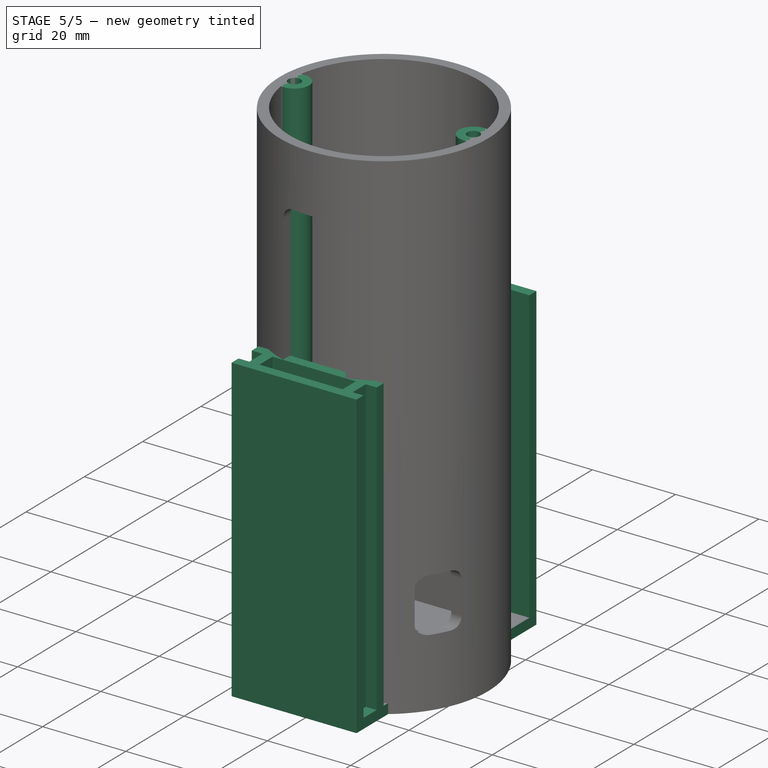
[diagram: stage 5 of 5 — iso view after this stage's code; geometry added in this stage tinted green]
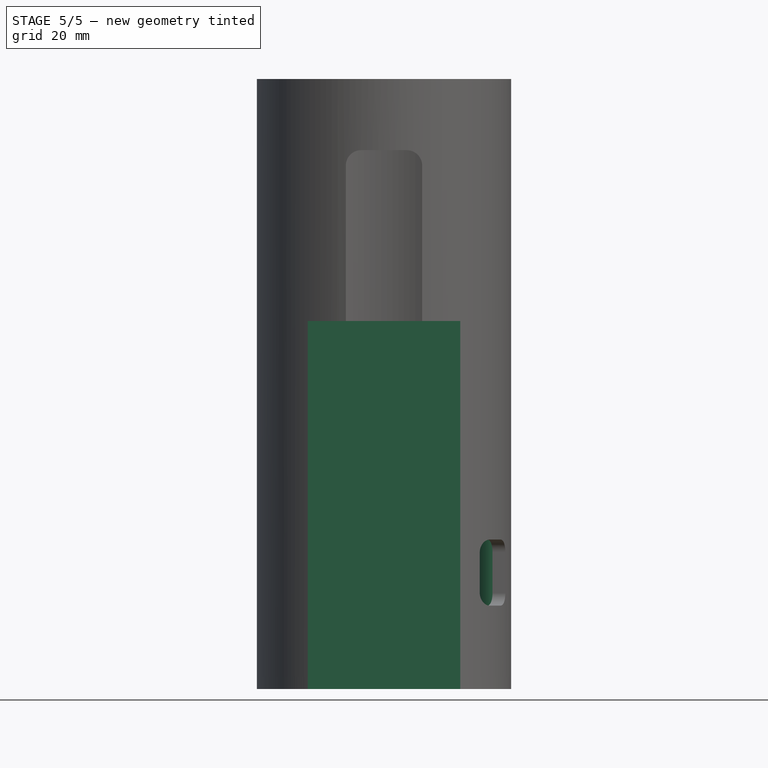
[diagram: stage 5 of 5 — front view after this stage's code; geometry added in this stage tinted green]
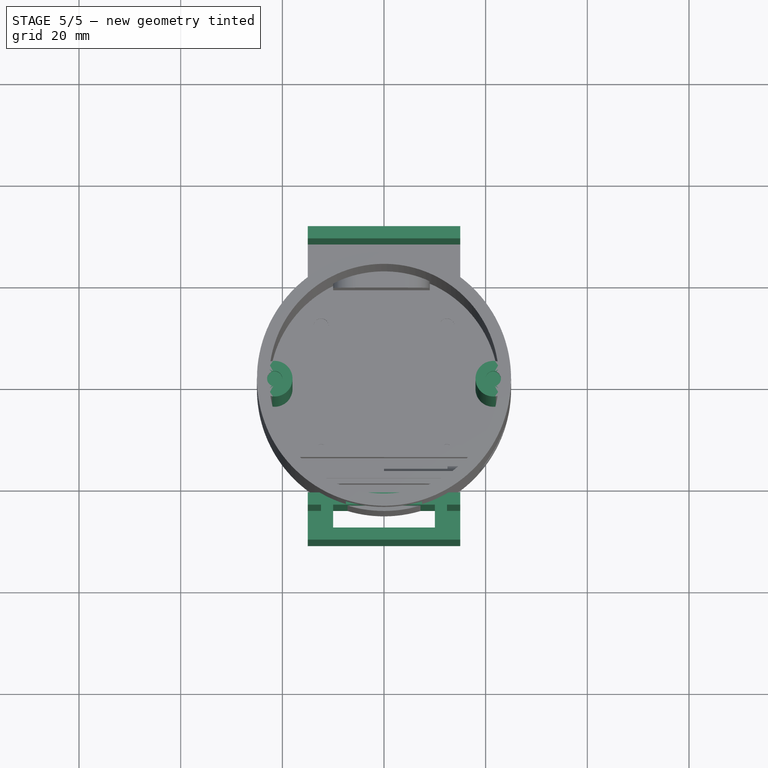
[diagram: stage 5 of 5 — top view after this stage's code; geometry added in this stage tinted green]
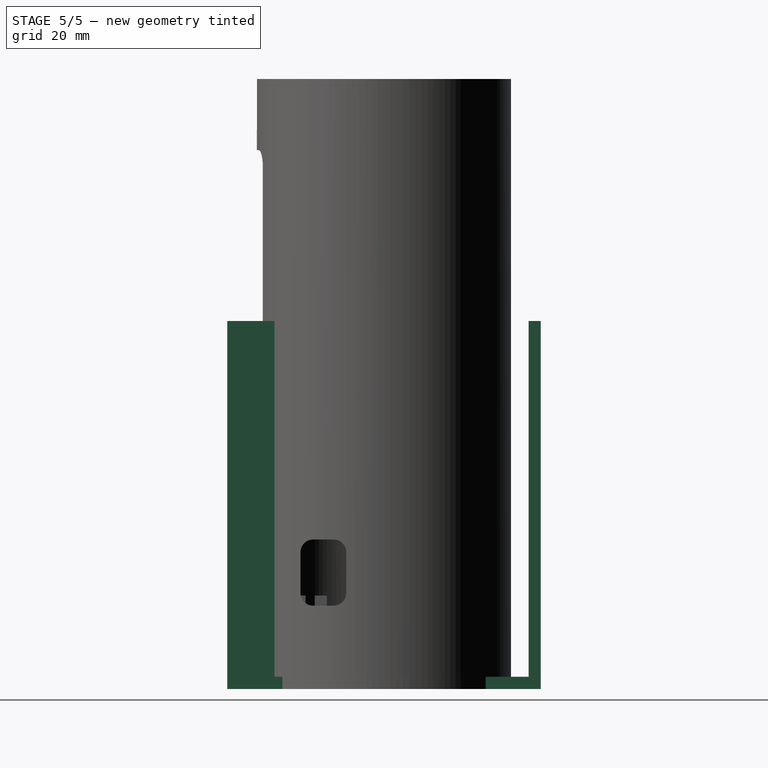
[diagram: stage 5 of 5 — right view after this stage's code; geometry added in this stage tinted green]
FEATURE [Spreadsheet::Sheet] Spreadsheet  label="params"
  cells = A1=attachement_support_gap; B1(attachement_support_gap)=50; C1=thickness of the thing that should slide between the two supports; A2=attachement_support_length; B2(attachement_support_length)=70; C2=how long the supports should be; A3=attachement_wall_width; B3(attachement_wall_width)=2.4; C3=thickness of the walls on the support piece; A4=attachement_width; B4(attachement_width)=30; A5=attachement_window_width; B5(attachement_window_width)=20; A6=attachement_window_height; B6(attachement_window_height)=4.5; A7=attachement_height; B7(attachement_height)==B3 + B1 + B3 + B6 + B3; A8=pcb_width; B8(pcb_width)=25; A9=pcb_length; B9(pcb_length)=100; A10=pcb_drill_offset; B10(pcb_drill_offset)=3; A11=main_plate_width; B11(main_plate_width)=35; A12=main_plate_length; B12(main_plate_length)=120; A13=light_slit_width; B13(light_slit_width)=15; A14=light_slit_length; B14(light_slit_length)=45; A15=light_slit_pcb_offset; B15(light_slit_pcb_offset)=6; A16=m2_support_dia; B16(m2_support_dia)=7; A17=m2_drill_dia; B17(m2_drill_dia)=3; A18=m2_depth; B18(m2_depth)=4; A19=total_depth; B19(total_depth)=30; A20=usb_hole_width; B20(usb_hole_width)=13; A21=usb_hole_height; B21(usb_hole_height)=9; A22=usb_pcb_offset; B22(usb_pcb_offset)=6.4; A23=button_dia; B23(button_dia)=20; A24=body_dia; B24(body_dia)=50; A25=pcb_offset_from_edge; B25(pcb_offset_from_edge)=8; A26=pcb_depth; B26(pcb_depth)=1.8; A27=button_guide_width; B27(button_guide_width)=2.8; A28=button_guite_length; B28(button_guite_length)=2; A29=button_clip_width; B29(button_clip_width)=4.5; A30=button_clip_length; B30(button_clip_length)=1
FEATURE [Sketcher::SketchObject] Sketch
  FullyConstrained = true
  MapMode = 5
  Support = -> [XY_Plane]
  expr: Constraints[10] = <<params>>.attachement_width
  expr: Constraints[11] = <<params>>.attachement_height
  expr: Constraints[20] = <<params>>.attachement_window_width
  expr: Constraints[21] = <<params>>.attachement_window_height
  expr: Constraints[22] = <<params>>.attachement_window_width / 2
  expr: Constraints[23] = <<params>>.attachement_wall_width
  sketch-geometry (9):
    g0: LineSegment StartX=15 StartY=-30.85 StartZ=0 EndX=15 EndY=30.85 EndZ=0
    g1: LineSegment StartX=15 StartY=30.85 StartZ=0 EndX=-15 EndY=30.85 EndZ=0
    g2: LineSegment StartX=-15 StartY=30.85 StartZ=0 EndX=-15 EndY=-30.85 EndZ=0
    g3: LineSegment StartX=-15 StartY=-30.85 StartZ=0 EndX=15 EndY=-30.85 EndZ=0
    g4: GeomPoint X=0 Y=0 Z=0
    g5: LineSegment StartX=-10 StartY=-23.95 StartZ=0 EndX=10 EndY=-23.95 EndZ=0
    g6: LineSegment StartX=10 StartY=-23.95 StartZ=0 EndX=10 EndY=-28.45 EndZ=0
    g7: LineSegment StartX=10 StartY=-28.45 StartZ=0 EndX=-10 EndY=-28.45 EndZ=0
    g8: LineSegment StartX=-10 StartY=-28.45 StartZ=0 EndX=-10 EndY=-23.95 EndZ=0
  constraints (24):
    c: Coincident(g0,g1)
    c: Coincident(g1,g2)
    c: Coincident(g2,g3)
    c: Coincident(g3,g0)
    c: Horizontal(g1)
    c: Horizontal(g3)
    c: Vertical(g0)
    c: Vertical(g2)
    c: Symmetric(g1,g0,g4)
    c: Coincident(g4,g-1)
    c: Distance(g1) = 30
    c: Distance(g0) = 61.7
    c: Coincident(g5,g6)
    c: Coincident(g6,g7)
    c: Coincident(g7,g8)
    c: Coincident(g8,g5)
    c: Horizontal(g5)
    c: Horizontal(g7)
    c: Vertical(g6)
    c: Vertical(g8)
    c: Distance(g5) = 20
    c: Distance(g6) = 4.5
    c: DistanceX(g4,g5) = 10
    c: DistanceY(g2,g7) = 2.4
FEATURE [PartDesign::Pad] Pad  label="front-plate"
  Direction = (0,0,1)
  Length = 2.4
  Length2 = 10
  Profile = -> Sketch
  ReferenceAxis = -> Sketch [N_Axis]
  Type = 0
  expr: Length = <<params>>.attachement_wall_width
FEATURE [Sketcher::SketchObject] Sketch001
  FullyConstrained = true
  MapMode = 5
  Support = -> [XY_Plane]
  expr: Constraints[10] = <<params>>.attachement_height / 2
  expr: Constraints[11] = <<params>>.attachement_width / 2
  expr: Constraints[22] = <<params>>.attachement_support_gap
  expr: Constraints[34] = <<params>>.attachement_window_height
  expr: Constraints[37] = (<<params>>.attachement_width - <<params>>.attachement_window_width) / 2
  expr: Constraints[39] = <<params>>.attachement_window_width
  expr: Constraints[41] = <<params>>.attachement_wall_width
  expr: Constraints[47] = <<params>>.attachement_wall_width
  expr: Constraints[8] = <<params>>.attachement_width
  expr: Constraints[9] = <<params>>.attachement_wall_width
  sketch-geometry (20):
    g0: LineSegment StartX=-15 StartY=30.85 StartZ=0 EndX=15 EndY=30.85 EndZ=0
    g1: LineSegment StartX=15 StartY=30.85 StartZ=0 EndX=15 EndY=28.45 EndZ=0
    g2: LineSegment StartX=15 StartY=28.45 StartZ=0 EndX=-15 EndY=28.45 EndZ=0
    g3: LineSegment StartX=-15 StartY=28.45 StartZ=0 EndX=-15 EndY=30.85 EndZ=0
    g4: LineSegment StartX=15 StartY=-23.95 StartZ=0 EndX=12.4 EndY=-23.95 EndZ=0
    g5: LineSegment StartX=-15 StartY=-23.95 StartZ=0 EndX=-15 EndY=-21.55 EndZ=0
    g6: LineSegment StartX=-15 StartY=-21.55 StartZ=0 EndX=15 EndY=-21.55 EndZ=0
    g7: LineSegment StartX=15 StartY=-21.55 StartZ=0 EndX=15 EndY=-23.95 EndZ=0
    g8: LineSegment StartX=-15 StartY=-28.45 StartZ=0 EndX=-12.4 EndY=-28.45 EndZ=0
    g9: LineSegment StartX=15 StartY=-28.45 StartZ=0 EndX=15 EndY=-30.85 EndZ=0
    g10: LineSegment StartX=15 StartY=-30.85 StartZ=0 EndX=-15 EndY=-30.85 EndZ=0
    g11: LineSegment StartX=-15 StartY=-30.85 StartZ=0 EndX=-15 EndY=-28.45 EndZ=0
    g12: LineSegment StartX=-10 StartY=-23.95 StartZ=0 EndX=-10 EndY=-28.45 EndZ=0
    g13: LineSegment StartX=10 StartY=-23.95 StartZ=0 EndX=10 EndY=-28.45 EndZ=0
    g14: LineSegment StartX=12.4 StartY=-23.95 StartZ=0 EndX=12.4 EndY=-28.45 EndZ=0
    g15: LineSegment StartX=10 StartY=-23.95 StartZ=0 EndX=-10 EndY=-23.95 EndZ=0
    g16: LineSegment StartX=12.4 StartY=-28.45 StartZ=0 EndX=15 EndY=-28.45 EndZ=0
    g17: LineSegment StartX=-12.4 StartY=-23.95 StartZ=0 EndX=-12.4 EndY=-28.45 EndZ=0
    g18: LineSegment StartX=-12.4 StartY=-23.95 StartZ=0 EndX=-15 EndY=-23.95 EndZ=0
    g19: LineSegment StartX=-10 StartY=-28.45 StartZ=0 EndX=10 EndY=-28.45 EndZ=0
  constraints (61):
    c: Coincident(g0,g1)
    c: Coincident(g1,g2)
    c: Coincident(g2,g3)
    c: Coincident(g3,g0)
    c: Horizontal(g0)
    c: Horizontal(g2)
    c: Vertical(g1)
    c: Vertical(g3)
    c: Distance(g0) = 30
    c: Distance(g1) = 2.4
    c: DistanceY(g-1,g0) = 30.85
    c: DistanceX(g-1,g0) = 15
    c: Coincident(g18,g5)
    c: Coincident(g5,g6)
    c: Coincident(g6,g7)
    c: Coincident(g7,g4)
    c: Horizontal(g4)
    c: Horizontal(g6)
    c: Vertical(g5)
    c: Vertical(g7)
    c: Equal(g1,g7)
    c: Equal(g6,g0)
    c: DistanceY(g6,g1) = 50
    c: DistanceX(g6,g0) = 0
    c: Coincident(g16,g9)
    c: Coincident(g9,g10)
    c: Coincident(g10,g11)
    c: Coincident(g11,g8)
    c: Horizontal(g8)
    c: Horizontal(g10)
    c: Vertical(g9)
    c: Vertical(g11)
    c: Equal(g9,g1)
    c: DistanceX(g16,g0) = 0
    c: DistanceY(g16,g4) = 4.5
    c: PointOnObject(g12,g4)
    c: Vertical(g12)
    c: DistanceX(g18,g12) = 5
    c: Vertical(g13)
    c: DistanceX(g12,g13) = 20
    c: Vertical(g14)
    c: DistanceX(g13,g14) = 2.4
    c: Coincident(g4,g14)
    c: Coincident(g15,g13)
    c: Coincident(g19,g13)
    c: Coincident(g16,g14)
    c: Vertical(g17)
    c: DistanceX(g17,g12) = 2.4
    c: PointOnObject(g15,g12)
    c: Coincident(g18,g17)
    c: Coincident(g8,g17)
    c: Coincident(g19,g12)
    c: Equal(g10,g6)
    c: Equal(g5,g7)
    c: Equal(g11,g9)
    c: Equal(g18,g4)
    c: Equal(g17,g12)
    c: DistanceY(g13,g4) = 0
    c: Horizontal(g15)
    c: Horizontal(g19)
    c: Horizontal(g16)
FEATURE [PartDesign::Pad] Pad001  label="support"
  BaseFeature = -> Pad
  Direction = (0,0,1)
  Length = 72.4
  Length2 = 10
  Profile = -> Sketch001
  ReferenceAxis = -> Sketch001 [N_Axis]
  Type = 0
  expr: Length = <<params>>.attachement_wall_width + <<params>>.attachement_support_length
FEATURE [Sketcher::SketchObject] Sketch020
  FullyConstrained = true
  MapMode = 5
  Support = -> [XY_Plane003]
  expr: Constraints[1] = <<params>>.body_dia / 2 - <<params>>.m2_support_dia / 2
  expr: Constraints[2] = <<params>>.m2_support_dia
  sketch-geometry (2):
    g0: Circle CenterX=-21.5 CenterY=0 CenterZ=0 NormalX=0 NormalY=0 NormalZ=1 AngleXU=0 Radius=3.5
    g1: Circle CenterX=21.5 CenterY=-1.8e-15 CenterZ=0 NormalX=0 NormalY=0 NormalZ=1 AngleXU=0 Radius=3.5
  constraints (5):
    c: PointOnObject(g0,g-1)
    c: DistanceX(g0,g-1) = 21.5
    c: Diameter(g0) = 7
    c: Equal(g1,g0)
    c: Symmetric(g1,g0,g-2)
FEATURE [PartDesign::Pad] Pad010  label="lid-support_struts"
  BaseFeature = -> Pocket009
  Direction = (0,0,1)
  Length = 120
  Length2 = 10
  Profile = -> Sketch020
  ReferenceAxis = -> Sketch020 [N_Axis]
  Type = 0
  expr: Length = <<params>>.main_plate_length
FEATURE [Sketcher::SketchObject] Sketch021
  AttachmentOffset = pos=(0,0,120) rot=(0,0,1;0rad)
  FullyConstrained = true
  MapMode = 5
  Placement = pos=(0,0,120) rot=(0,0,1;0rad)
  Support = -> [XY_Plane003]
  expr: .AttachmentOffset.Base.z = <<params>>.main_plate_length
  expr: Constraints[1] = <<params>>.body_dia / 2 - <<params>>.m2_support_dia / 2
  expr: Constraints[2] = <<params>>.m2_drill_dia
  sketch-geometry (2):
    g0: Circle CenterX=-21.5 CenterY=0 CenterZ=0 NormalX=0 NormalY=0 NormalZ=1 AngleXU=0 Radius=1.5
    g1: Circle CenterX=21.5 CenterY=0 CenterZ=0 NormalX=0 NormalY=0 NormalZ=1 AngleXU=0 Radius=1.5
  constraints (5):
    c: PointOnObject(g0,g-1)
    c: DistanceX(g0,g-1) = 21.5
    c: Diameter(g0) = 3
    c: Equal(g0,g1)
    c: Symmetric(g1,g0,g-2)
FEATURE [PartDesign::Pocket] Pocket010
  BaseFeature = -> Pad010
  Direction = (0,0,-1)
  Length = 4
  Length2 = 5
  Profile = -> Sketch021
  ReferenceAxis = -> Sketch021 [N_Axis]
  Type = 0
  expr: Length = <<params>>.m2_depth
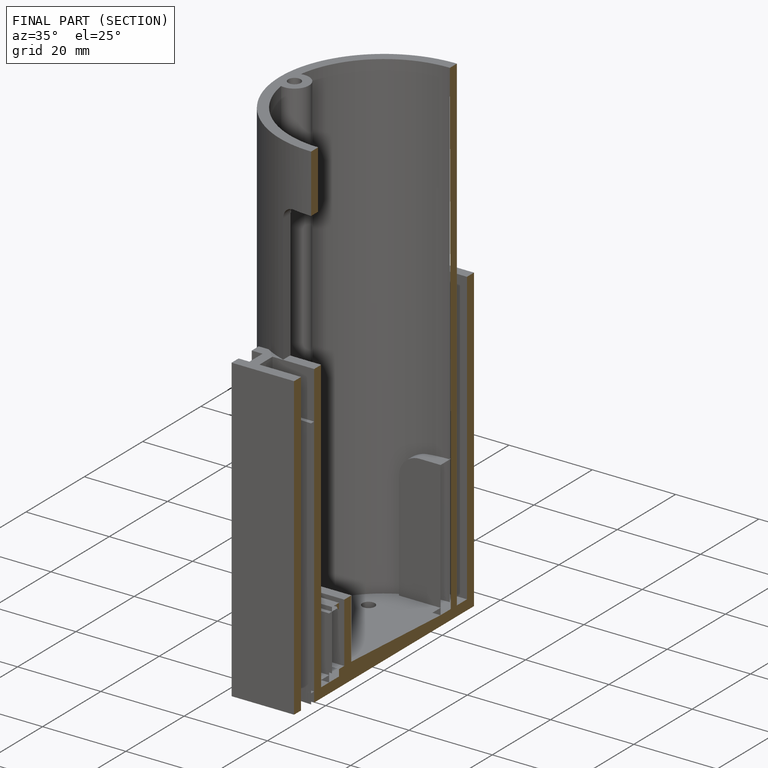
[diagram: finished part — half-section view (interior)]
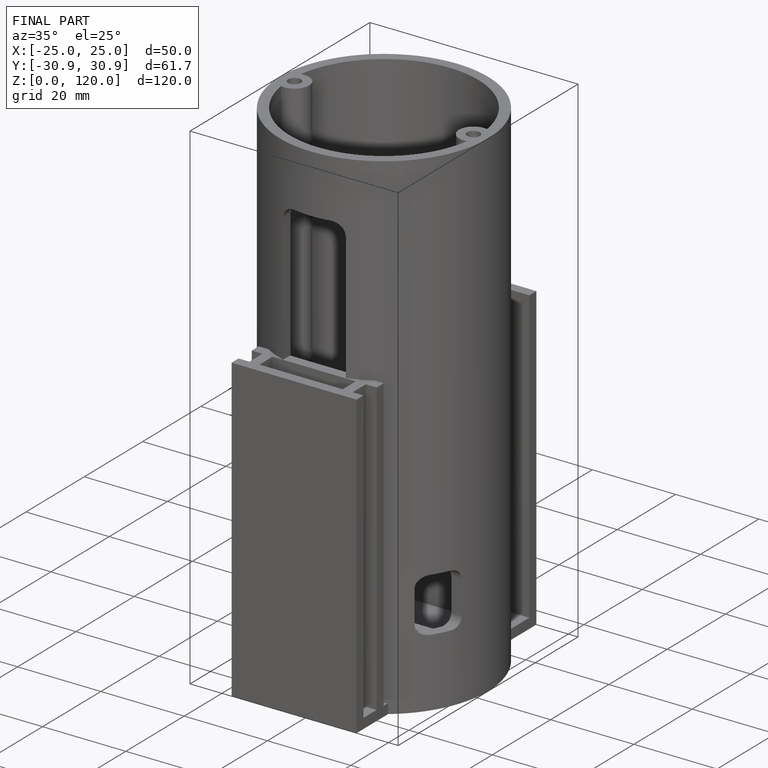
[diagram: finished part — iso view with bounding-box wireframe]
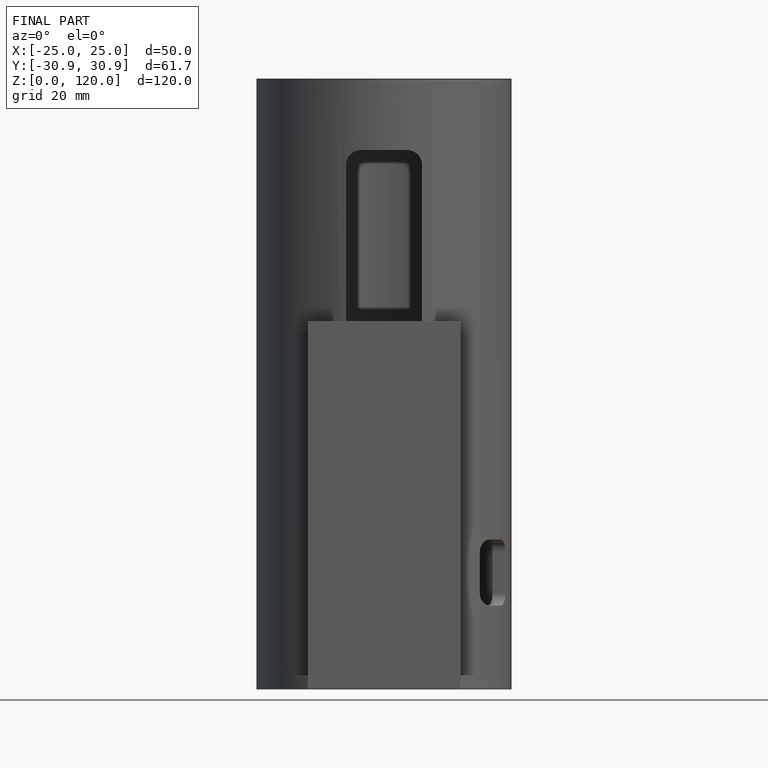
[diagram: finished part — front view with bounding-box wireframe]
